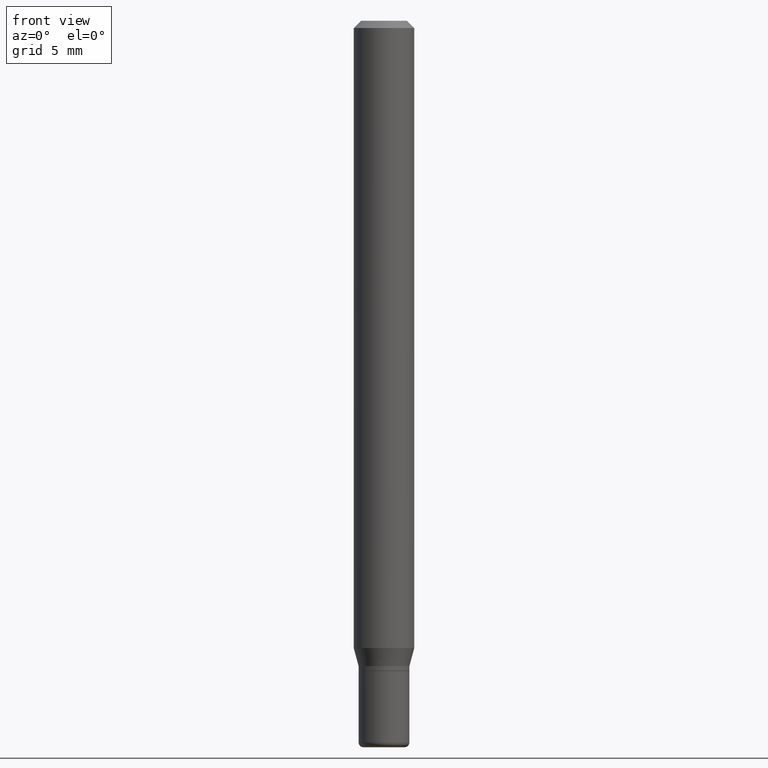
[diagram: clean part render]
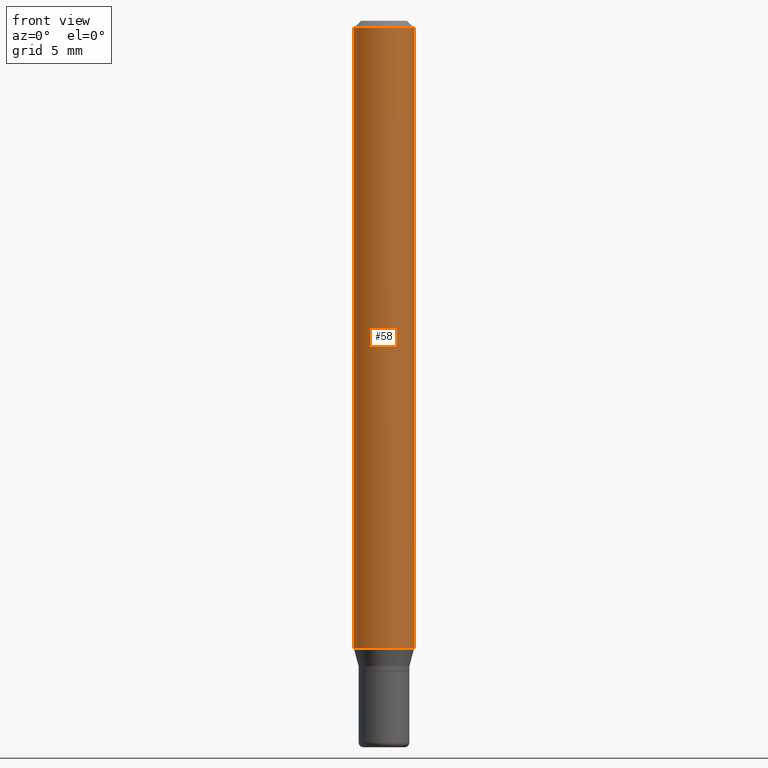
[diagram: same view with one face highlighted and labeled with its STEP entity id]
A machine part, front view. The second image highlights one B-rep face of the part: STEP entity #58.
In plain terms, the highlighted cylindrical surface (edge-blend (fillet) strip) has radius 1.5875 mm, axis along (-0, 0, 1).
Its self-contained STEP definition (entity closure, byte-faithful):
#7 = VERTEX_POINT ( 'NONE', #11 ) ;
#11 = CARTESIAN_POINT ( 'NONE',  ( -0.06250000000000000000, -4.078005816656016392E-15, -1.295179491924311144 ) ) ;
#13 = EDGE_CURVE ( 'NONE', #7, #190, #299, .T. ) ;
#16 = LINE ( 'NONE', #211, #222 ) ;
#19 = CARTESIAN_POINT ( 'NONE',  ( 0.06250000000000000000, -4.888073874380378612E-16, -0.01499999999999970281 ) ) ;
#21 = CIRCLE ( 'NONE', #316, 0.06250000000000000000 ) ;
#24 = DIRECTION ( 'NONE',  ( -2.445468806185136597E-29, 3.491481338843145583E-15, 1.000000000000000000 ) ) ;
#53 = DIRECTION ( 'NONE',  ( 1.000000000000000000, -6.982962677686266711E-15, 4.876176775795935793E-29 ) ) ;
#55 = CARTESIAN_POINT ( 'NONE',  ( -0.06250000000000000000, -1.843144413444299442E-15, -0.01499999999999970281 ) ) ;
#58 = ADVANCED_FACE ( 'NONE', ( #210 ), #101, .T. ) ;
#72 = VERTEX_POINT ( 'NONE', #19 ) ;
#76 = EDGE_CURVE ( 'NONE', #7, #251, #21, .T. ) ;
#97 = DIRECTION ( 'NONE',  ( -2.445468806185136877E-29, 3.491481338843145188E-15, 1.000000000000000000 ) ) ;
#101 = CYLINDRICAL_SURFACE ( 'NONE', #243, 0.06250000000000000000 ) ;
#106 = CARTESIAN_POINT ( 'NONE',  ( 3.668203209277632395E-31, -5.237222008264614861E-17, -0.01499999999999970281 ) ) ;
#139 = DIRECTION ( 'NONE',  ( 1.000000000000000000, -6.982962677686266711E-15, 0.000000000000000000 ) ) ;
#141 = DIRECTION ( 'NONE',  ( 1.000000000000000000, -6.982962677686262766E-15, 0.000000000000000000 ) ) ;
#183 = CARTESIAN_POINT ( 'NONE',  ( 3.167321045911617148E-29, -4.522095026506079008E-15, -1.295179491924311144 ) ) ;
#185 = CARTESIAN_POINT ( 'NONE',  ( 0.06250000000000000000, -4.958530193861471467E-15, -1.295179491924311144 ) ) ;
#190 = VERTEX_POINT ( 'NONE', #55 ) ;
#210 = FACE_OUTER_BOUND ( 'NONE', #265, .T. ) ;
#211 = CARTESIAN_POINT ( 'NONE',  ( 0.06250000000000000000, -4.364351673553916694E-16, 3.047610484872459871E-30 ) ) ;
#218 = ORIENTED_EDGE ( 'NONE', *, *, #13, .F. ) ;
#222 = VECTOR ( 'NONE', #377, 39.37007874015748143 ) ;
#234 = AXIS2_PLACEMENT_3D ( 'NONE', #106, #340, #139 ) ;
#235 = CIRCLE ( 'NONE', #234, 0.06250000000000000000 ) ;
#243 = AXIS2_PLACEMENT_3D ( 'NONE', #336, #497, #53 ) ;
#251 = VERTEX_POINT ( 'NONE', #185 ) ;
#265 = EDGE_LOOP ( 'NONE', ( #218, #308, #440, #425 ) ) ;
#299 = LINE ( 'NONE', #386, #347 ) ;
#308 = ORIENTED_EDGE ( 'NONE', *, *, #76, .T. ) ;
#316 = AXIS2_PLACEMENT_3D ( 'NONE', #183, #24, #141 ) ;
#336 = CARTESIAN_POINT ( 'NONE',  ( 0.000000000000000000, 0.000000000000000000, 0.000000000000000000 ) ) ;
#340 = DIRECTION ( 'NONE',  ( -2.445468806185136597E-29, 3.491481338843145583E-15, 1.000000000000000000 ) ) ;
#347 = VECTOR ( 'NONE', #97, 39.37007874015748143 ) ;
#354 = EDGE_CURVE ( 'NONE', #190, #72, #235, .T. ) ;
#377 = DIRECTION ( 'NONE',  ( -2.445468806185136877E-29, 3.491481338843145188E-15, 1.000000000000000000 ) ) ;
#386 = CARTESIAN_POINT ( 'NONE',  ( -0.06250000000000000000, 4.440892098500626162E-16, -3.074334431409316114E-30 ) ) ;
#425 = ORIENTED_EDGE ( 'NONE', *, *, #354, .F. ) ;
#440 = ORIENTED_EDGE ( 'NONE', *, *, #476, .T. ) ;
#476 = EDGE_CURVE ( 'NONE', #251, #72, #16, .T. ) ;
#497 = DIRECTION ( 'NONE',  ( -2.445468806185136597E-29, 3.491481338843145583E-15, 1.000000000000000000 ) ) ;